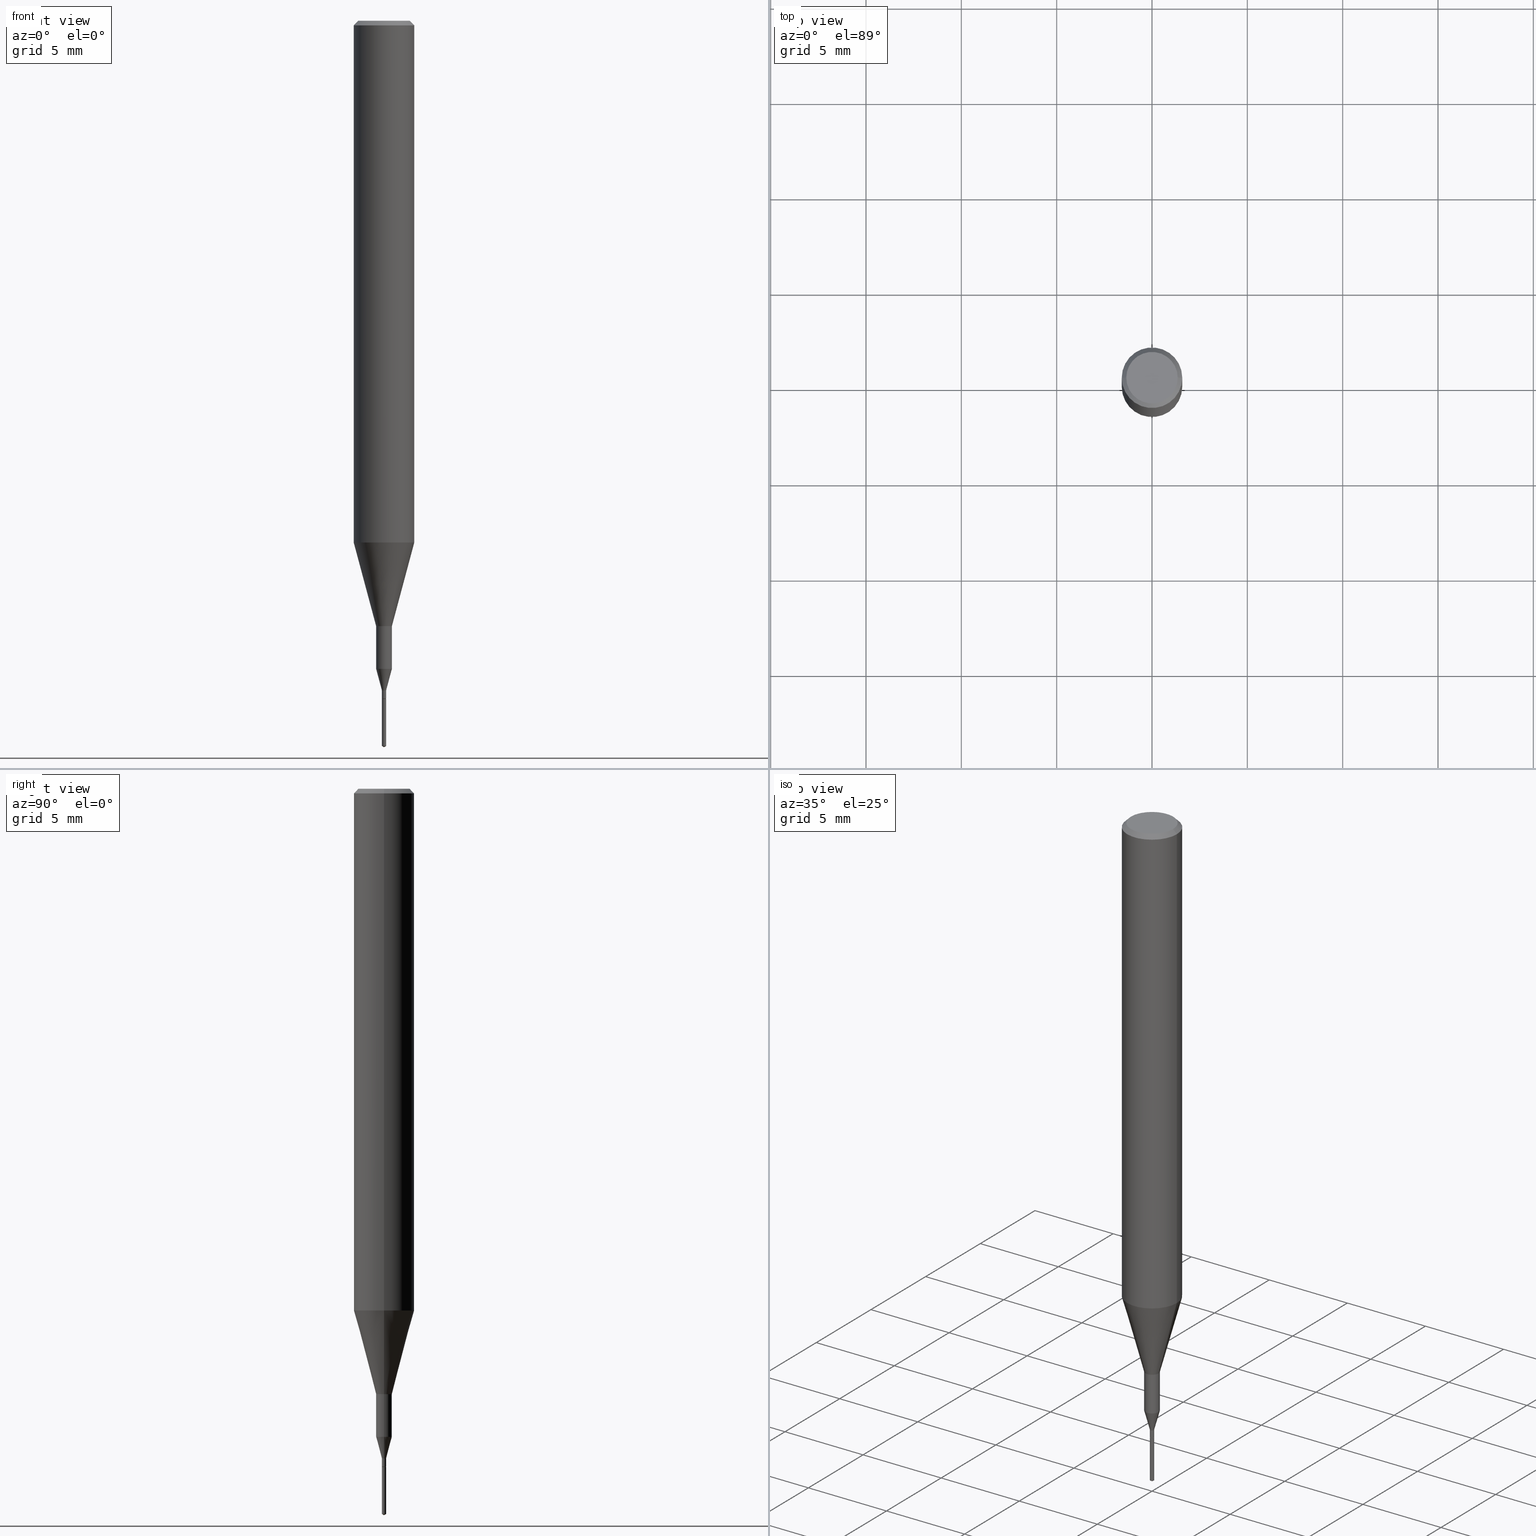
[diagram: canonical four-view strip — front | top / right | iso, engineering-drawing reading convention]
A machine part, canonical four-view strip (front | top / right | iso — engineering-drawing reading convention). The complete STEP part file that produces these views, byte-faithful:
ISO-10303-21;
HEADER;
FILE_DESCRIPTION (( 'STEP AP203' ),
    '1' );
FILE_NAME ('07082.STEP',
    '2024-04-19T13:29:41',
    ( '' ),
    ( '' ),
    'SwSTEP 2.0',
    'SolidWorks 2023',
    '' );
FILE_SCHEMA (( 'CONFIG_CONTROL_DESIGN' ));
ENDSEC;

DATA;
#1 = CARTESIAN_POINT ( 'NONE',  ( 1.415359278996747967E-46, -2.020757941330909984E-32, -5.787680772770392401E-18 ) ) ;
#2 = EDGE_CURVE ( 'NONE', #240, #576, #392, .T. ) ;
#3 = DIRECTION ( 'NONE',  ( 1.000000000000000000, -6.982962677686266711E-15, 4.875930095424100059E-29 ) ) ;
#4 = LINE ( 'NONE', #382, #20 ) ;
#5 = AXIS2_PLACEMENT_3D ( 'NONE', #461, #413, #147 ) ;
#6 = DIRECTION ( 'NONE',  ( 0.2588190451025214611, 1.565188264969621573E-15, 0.9659258262890682012 ) ) ;
#7 = CARTESIAN_POINT ( 'NONE',  ( -0.004349999999999993629, 3.090860900556431281E-17, -2.139736764260880962E-31 ) ) ;
#8 = EDGE_CURVE ( 'NONE', #188, #590, #397, .T. ) ;
#9 = EDGE_LOOP ( 'NONE', ( #361, #414, #203, #535 ) ) ;
#10 = DATE_AND_TIME ( #341, #484 ) ;
#11 = DIRECTION ( 'NONE',  ( -2.445468806185136597E-29, 3.491481338843145583E-15, 1.000000000000000000 ) ) ;
#12 = DIRECTION ( 'NONE',  ( -2.445468806185136597E-29, 3.491481338843145583E-15, 1.000000000000000000 ) ) ;
#14 = VERTEX_POINT ( 'NONE', #343 ) ;
#13 = CIRCLE ( 'NONE', #500, 0.004349999999999982353 ) ;
#15 = AXIS2_PLACEMENT_3D ( 'NONE', #253, #442, #211 ) ;
#16 = ORIENTED_EDGE ( 'NONE', *, *, #46, .T. ) ;
#17 = ORIENTED_EDGE ( 'NONE', *, *, #239, .T. ) ;
#18 = ADVANCED_FACE ( 'NONE', ( #486 ), #249, .T. ) ;
#19 = ORIENTED_EDGE ( 'NONE', *, *, #92, .T. ) ;
#20 = VECTOR ( 'NONE', #99, 39.37007874015748143 ) ;
#21 = CIRCLE ( 'NONE', #82, 0.01624999999999999709 ) ;
#22 = ORIENTED_EDGE ( 'NONE', *, *, #8, .F. ) ;
#23 = PRODUCT ( '07082', '07082', '', ( #573 ) ) ;
#24 = CARTESIAN_POINT ( 'NONE',  ( -3.037588764790101145E-17, -0.004350000000004887284, -1.400000000000000133 ) ) ;
#25 = ADVANCED_FACE ( 'NONE', ( #75 ), #130, .T. ) ;
#26 = ORIENTED_EDGE ( 'NONE', *, *, #528, .F. ) ;
#27 = EDGE_CURVE ( 'NONE', #576, #240, #533, .T. ) ;
#28 = DIRECTION ( 'NONE',  ( -2.452008562004351188E-29, 3.482116036290244915E-15, 1.000000000000000000 ) ) ;
#29 = APPROVAL_DATE_TIME ( #305, #167 ) ;
#30 = AXIS2_PLACEMENT_3D ( 'NONE', #337, #458, #49 ) ;
#31 = EDGE_CURVE ( 'NONE', #301, #42, #58, .T. ) ;
#32 = VECTOR ( 'NONE', #369, 39.37007874015748143 ) ;
#33 = FACE_OUTER_BOUND ( 'NONE', #297, .T. ) ;
#34 = LINE ( 'NONE', #358, #562 ) ;
#35 = ORIENTED_EDGE ( 'NONE', *, *, #390, .F. ) ;
#36 = DIRECTION ( 'NONE',  ( 1.000000000000000000, -6.982962677686264344E-15, 0.000000000000000000 ) ) ;
#37 = AXIS2_PLACEMENT_3D ( 'NONE', #319, #227, #431 ) ;
#38 = EDGE_LOOP ( 'NONE', ( #218, #331, #565, #499 ) ) ;
#39 = AXIS2_PLACEMENT_3D ( 'NONE', #335, #473, #158 ) ;
#40 = AXIS2_PLACEMENT_3D ( 'NONE', #376, #231, #421 ) ;
#41 = SECURITY_CLASSIFICATION ( '', '', #292 ) ;
#42 = VERTEX_POINT ( 'NONE', #553 ) ;
#43 = APPROVAL_ROLE ( '' ) ;
#44 = LINE ( 'NONE', #141, #204 ) ;
#45 = CARTESIAN_POINT ( 'NONE',  ( 3.272498466818778483E-29, -4.672260508656662791E-15, -1.338188595389930624 ) ) ;
#46 = EDGE_CURVE ( 'NONE', #291, #14, #300, .T. ) ;
#47 = DIRECTION ( 'NONE',  ( 1.000000000000000000, -6.982962677686266711E-15, 0.000000000000000000 ) ) ;
#48 = DIRECTION ( 'NONE',  ( -2.445468806185136597E-29, 3.491481338843145583E-15, 1.000000000000000000 ) ) ;
#49 = DIRECTION ( 'NONE',  ( 1.000000000000000000, -6.982962677686198869E-15, 0.000000000000000000 ) ) ;
#50 = CARTESIAN_POINT ( 'NONE',  ( 3.423656328659192244E-29, -4.888073874380404841E-15, -1.400000000000000355 ) ) ;
#51 = CARTESIAN_POINT ( 'NONE',  ( -0.06250000000000000000, -1.453125275228401137E-15, -0.009375000000000062103 ) ) ;
#52 = FACE_OUTER_BOUND ( 'NONE', #436, .T. ) ;
#53 = CLOSED_SHELL ( 'NONE', ( #108, #127, #515, #530, #25, #344, #201, #116, #574, #490, #18, #449, #254, #144, #67, #324 ) ) ;
#54 =( GEOMETRIC_REPRESENTATION_CONTEXT ( 3 ) GLOBAL_UNCERTAINTY_ASSIGNED_CONTEXT ( ( #540 ) ) GLOBAL_UNIT_ASSIGNED_CONTEXT ( ( #502, #389, #555 ) ) REPRESENTATION_CONTEXT ( 'NONE', 'WORKASPACE' ) );
#55 = ORIENTED_EDGE ( 'NONE', *, *, #120, .T. ) ;
#56 = CARTESIAN_POINT ( 'NONE',  ( -0.01625000000000000056, -4.556797314095646605E-15, -1.338188595389930624 ) ) ;
#57 = DIRECTION ( 'NONE',  ( -2.445468806185136597E-29, 3.491481338843145583E-15, 1.000000000000000000 ) ) ;
#58 = LINE ( 'NONE', #273, #491 ) ;
#59 = EDGE_LOOP ( 'NONE', ( #340, #264, #357, #423 ) ) ;
#60 = DIRECTION ( 'NONE',  ( 1.000000000000000000, -6.982962677686264344E-15, 0.000000000000000000 ) ) ;
#61 = EDGE_CURVE ( 'NONE', #191, #143, #582, .T. ) ;
#62 = PRODUCT_RELATED_PRODUCT_CATEGORY ( 'detail', '', ( #23 ) ) ;
#63 = AXIS2_PLACEMENT_3D ( 'NONE', #149, #416, #190 ) ;
#64 = CONICAL_SURFACE ( 'NONE', #185, 65.52281426577236800, 1.029744258676680957 ) ;
#65 = PERSON_AND_ORGANIZATION_ROLE ( 'design_supplier' ) ;
#66 = EDGE_LOOP ( 'NONE', ( #338, #541, #522, #133 ) ) ;
#67 = ADVANCED_FACE ( 'NONE', ( #52 ), #329, .T. ) ;
#68 = PERSON_AND_ORGANIZATION ( #375, #393 ) ;
#69 = ORIENTED_EDGE ( 'NONE', *, *, #390, .T. ) ;
#70 = ORIENTED_EDGE ( 'NONE', *, *, #433, .F. ) ;
#71 = CONICAL_SURFACE ( 'NONE', #123, 65.52281426577236800, 1.029744258676680957 ) ;
#72 = PRODUCT_DEFINITION_FORMATION_WITH_SPECIFIED_SOURCE ( 'ANY', '', #23, .NOT_KNOWN. ) ;
#73 = LOCAL_TIME ( 9, 29, 41.00000000000000000, #235 ) ;
#74 = CC_DESIGN_DATE_AND_TIME_ASSIGNMENT ( #466, #476, ( #41 ) ) ;
#75 = FACE_OUTER_BOUND ( 'NONE', #360, .T. ) ;
#76 = PERSON_AND_ORGANIZATION ( #375, #393 ) ;
#77 = PLANE ( 'NONE',  #15 ) ;
#78 = DIRECTION ( 'NONE',  ( 0.000000000000000000, 0.000000000000000000, 1.000000000000000000 ) ) ;
#79 = DIRECTION ( 'NONE',  ( -0.7071067811865454633, 2.468850131082235367E-15, -0.7071067811865495711 ) ) ;
#80 = EDGE_CURVE ( 'NONE', #447, #378, #4, .T. ) ;
#81 = AXIS2_PLACEMENT_3D ( 'NONE', #371, #241, #94 ) ;
#82 = AXIS2_PLACEMENT_3D ( 'NONE', #223, #372, #424 ) ;
#83 = MANIFOLD_SOLID_BREP ( 'Body-Move/Copy2[1]', #172 ) ;
#84 = DIRECTION ( 'NONE',  ( -6.982962677686265133E-15, -1.000000000000000000, 3.468864327941385955E-15 ) ) ;
#85 = ORIENTED_EDGE ( 'NONE', *, *, #80, .T. ) ;
#86 = DIRECTION ( 'NONE',  ( 1.000000000000000000, -6.982962677686267499E-15, 4.876176775795936353E-29 ) ) ;
#87 = EDGE_LOOP ( 'NONE', ( #26, #19, #448, #391 ) ) ;
#88 = LINE ( 'NONE', #24, #258 ) ;
#89 = ORIENTED_EDGE ( 'NONE', *, *, #31, .T. ) ;
#90 = AXIS2_PLACEMENT_3D ( 'NONE', #1, #182, #365 ) ;
#91 = ORIENTED_EDGE ( 'NONE', *, *, #274, .T. ) ;
#92 = EDGE_CURVE ( 'NONE', #518, #295, #13, .T. ) ;
#93 = CIRCLE ( 'NONE', #401, 0.004349999999999999700 ) ;
#94 = DIRECTION ( 'NONE',  ( -6.982962677686266711E-15, -1.000000000000000000, 0.000000000000000000 ) ) ;
#95 = LINE ( 'NONE', #589, #32 ) ;
#96 = ORIENTED_EDGE ( 'NONE', *, *, #176, .T. ) ;
#97 = CARTESIAN_POINT ( 'NONE',  ( 0.000000000000000000, 0.000000000000000000, 0.000000000000000000 ) ) ;
#98 = DIRECTION ( 'NONE',  ( 1.000000000000000000, -6.982962677686266711E-15, 4.876176775795936353E-29 ) ) ;
#99 = DIRECTION ( 'NONE',  ( -2.445468806185136877E-29, 3.491481338843145188E-15, 1.000000000000000000 ) ) ;
#100 = DIRECTION ( 'NONE',  ( -2.445468806185136597E-29, 3.491481338843145583E-15, 1.000000000000000000 ) ) ;
#101 = PRODUCT_DEFINITION ( 'UNKNOWN', '', #72, #160 ) ;
#102 = DIRECTION ( 'NONE',  ( 2.438088387897960049E-29, -3.491481338843145188E-15, -1.000000000000000000 ) ) ;
#103 = DIRECTION ( 'NONE',  ( -2.445468806185136597E-29, 3.491481338843145583E-15, 1.000000000000000000 ) ) ;
#104 = VECTOR ( 'NONE', #270, 39.37007874015748143 ) ;
#105 = VECTOR ( 'NONE', #351, 39.37007874015747433 ) ;
#106 = SHAPE_DEFINITION_REPRESENTATION ( #569, #550 ) ;
#107 = FACE_OUTER_BOUND ( 'NONE', #410, .T. ) ;
#108 = ADVANCED_FACE ( 'NONE', ( #377 ), #444, .T. ) ;
#109 = EDGE_LOOP ( 'NONE', ( #153, #225, #286, #200 ) ) ;
#110 = DIRECTION ( 'NONE',  ( -2.445468806185136597E-29, 3.491481338843145583E-15, 1.000000000000000000 ) ) ;
#111 = CARTESIAN_POINT ( 'NONE',  ( 0.000000000000000000, 0.000000000000000000, 0.000000000000000000 ) ) ;
#112 = DIRECTION ( 'NONE',  ( 1.000000000000000000, -6.982962677686288799E-15, 0.000000000000000000 ) ) ;
#113 = DIMENSIONAL_EXPONENTS ( 1.000000000000000000, 0.000000000000000000, 0.000000000000000000, 0.000000000000000000, 0.000000000000000000, 0.000000000000000000, 0.000000000000000000 ) ;
#114 = ORIENTED_EDGE ( 'NONE', *, *, #435, .F. ) ;
#115 = PERSON_AND_ORGANIZATION ( #375, #393 ) ;
#116 = ADVANCED_FACE ( 'NONE', ( #194 ), #566, .F. ) ;
#117 = ORIENTED_EDGE ( 'NONE', *, *, #213, .F. ) ;
#118 = AXIS2_PLACEMENT_3D ( 'NONE', #132, #313, #403 ) ;
#119 = EDGE_LOOP ( 'NONE', ( #35, #516 ) ) ;
#120 = EDGE_CURVE ( 'NONE', #143, #191, #366, .T. ) ;
#121 = ORIENTED_EDGE ( 'NONE', *, *, #92, .F. ) ;
#122 = DIRECTION ( 'NONE',  ( 1.000000000000000000, -6.982962677686258033E-15, 0.000000000000000000 ) ) ;
#123 = AXIS2_PLACEMENT_3D ( 'NONE', #139, #230, #154 ) ;
#124 = CIRCLE ( 'NONE', #40, 0.003850000000000000124 ) ;
#125 = CC_DESIGN_APPROVAL ( #299, ( #72 ) ) ;
#126 = FACE_OUTER_BOUND ( 'NONE', #159, .T. ) ;
#127 = ADVANCED_FACE ( 'NONE', ( #441 ), #388, .T. ) ;
#128 = DIRECTION ( 'NONE',  ( -2.445468806185136597E-29, 3.491481338843145583E-15, 1.000000000000000000 ) ) ;
#129 = DIRECTION ( 'NONE',  ( -2.452008562004351188E-29, 3.482116036290244915E-15, 1.000000000000000000 ) ) ;
#130 = CONICAL_SURFACE ( 'NONE', #202, 0.01625000000000000056, 0.2617993877991501295 ) ;
#131 = CARTESIAN_POINT ( 'NONE',  ( 3.090860900559858512E-17, 0.004349999999995111249, -1.400000000000000133 ) ) ;
#132 = CARTESIAN_POINT ( 'NONE',  ( 0.000000000000000000, 0.000000000000000000, 0.000000000000000000 ) ) ;
#133 = ORIENTED_EDGE ( 'NONE', *, *, #549, .F. ) ;
#134 = CARTESIAN_POINT ( 'NONE',  ( 3.423656328659192244E-29, -4.888073874380404841E-15, -1.400000000000000355 ) ) ;
#135 = DATE_AND_TIME ( #146, #510 ) ;
#136 = EDGE_CURVE ( 'NONE', #301, #188, #501, .T. ) ;
#137 = LINE ( 'NONE', #454, #222 ) ;
#138 = DIRECTION ( 'NONE',  ( 1.000000000000000000, -6.982962677686258033E-15, 0.000000000000000000 ) ) ;
#139 = CARTESIAN_POINT ( 'NONE',  ( -9.286691297279199858E-28, 1.318548970531025661E-13, 37.87007874015748143 ) ) ;
#140 = CARTESIAN_POINT ( 'NONE',  ( 3.090860900560098868E-17, 0.004349999999995112117, -1.400000000000000133 ) ) ;
#141 = CARTESIAN_POINT ( 'NONE',  ( 0.01624999999999999709, -1.134731435124018242E-16, 7.923787260668394963E-31 ) ) ;
#142 = CIRCLE ( 'NONE', #525, 0.06250000000000012490 ) ;
#143 = VERTEX_POINT ( 'NONE', #374 ) ;
#144 = ADVANCED_FACE ( 'NONE', ( #506 ), #559, .T. ) ;
#145 = DIRECTION ( 'NONE',  ( -6.982962677686266711E-15, -1.000000000000000000, 0.000000000000000000 ) ) ;
#146 = CALENDAR_DATE ( 2024, 19, 4 ) ;
#147 = DIRECTION ( 'NONE',  ( -6.982962677686265133E-15, -1.000000000000000000, 0.000000000000000000 ) ) ;
#148 = DIRECTION ( 'NONE',  ( 1.000000000000000000, -6.982962677686266711E-15, 4.876176775795935793E-29 ) ) ;
#149 = CARTESIAN_POINT ( 'NONE',  ( 2.634730117954813298E-29, -3.761696332605275695E-15, -1.077392650149939346 ) ) ;
#150 = DIRECTION ( 'NONE',  ( -0.7071067811864302222, 7.493145998869931331E-15, 0.7071067811866648123 ) ) ;
#151 = AXIS2_PLACEMENT_3D ( 'NONE', #228, #110, #60 ) ;
#152 = CIRCLE ( 'NONE', #453, 0.004349999999999982353 ) ;
#153 = ORIENTED_EDGE ( 'NONE', *, *, #27, .T. ) ;
#154 = DIRECTION ( 'NONE',  ( -6.982962677686265133E-15, -1.000000000000000000, 3.468864327941385955E-15 ) ) ;
#155 = CARTESIAN_POINT ( 'NONE',  ( -0.06250000000000012490, -3.317607122755211895E-15, -1.077392650149939346 ) ) ;
#156 = ORIENTED_EDGE ( 'NONE', *, *, #370, .T. ) ;
#157 = ADVANCED_FACE ( 'NONE', ( #456 ), #71, .T. ) ;
#158 = DIRECTION ( 'NONE',  ( 1.000000000000000000, -6.982962677686265922E-15, 4.876176775795935793E-29 ) ) ;
#159 = EDGE_LOOP ( 'NONE', ( #252, #432 ) ) ;
#160 = DESIGN_CONTEXT ( 'detailed design', #271, 'design' ) ;
#161 = ORIENTED_EDGE ( 'NONE', *, *, #433, .T. ) ;
#162 = AXIS2_PLACEMENT_3D ( 'NONE', #262, #128, #304 ) ;
#163 = VERTEX_POINT ( 'NONE', #385 ) ;
#164 = DIRECTION ( 'NONE',  ( -6.982962677686266711E-15, -1.000000000000000000, 0.000000000000000000 ) ) ;
#165 = EDGE_LOOP ( 'NONE', ( #91, #364 ) ) ;
#166 = AXIS2_PLACEMENT_3D ( 'NONE', #482, #78, #298 ) ;
#167 = APPROVAL ( #398, 'UNSPECIFIED' ) ;
#168 = DIRECTION ( 'NONE',  ( -2.445468806185136877E-29, 3.491481338843145188E-15, 1.000000000000000000 ) ) ;
#169 = EDGE_CURVE ( 'NONE', #294, #378, #242, .T. ) ;
#170 = FACE_OUTER_BOUND ( 'NONE', #179, .T. ) ;
#171 = PERSON_AND_ORGANIZATION ( #375, #393 ) ;
#172 = CLOSED_SHELL ( 'NONE', ( #316, #157, #521, #474, #588 ) ) ;
#173 = LOCAL_TIME ( 9, 29, 41.00000000000000000, #446 ) ;
#174 = ORIENTED_EDGE ( 'NONE', *, *, #80, .F. ) ;
#175 = DIRECTION ( 'NONE',  ( -2.445468806185136597E-29, 3.491481338843145583E-15, 1.000000000000000000 ) ) ;
#176 = EDGE_CURVE ( 'NONE', #163, #447, #545, .T. ) ;
#177 = CARTESIAN_POINT ( 'NONE',  ( 0.000000000000000000, 0.000000000000000000, 0.000000000000000000 ) ) ;
#178 = CARTESIAN_POINT ( 'NONE',  ( 3.272498466818778483E-29, -4.672260508656662791E-15, -1.338188595389930624 ) ) ;
#179 = EDGE_LOOP ( 'NONE', ( #323, #89, #587 ) ) ;
#180 = CARTESIAN_POINT ( 'NONE',  ( 1.415359278996747967E-46, -2.020757941330909984E-32, -5.787680772770392401E-18 ) ) ;
#181 = EDGE_LOOP ( 'NONE', ( #452, #455, #117 ) ) ;
#182 = DIRECTION ( 'NONE',  ( -2.445468806185136597E-29, 3.491481338843145583E-15, 1.000000000000000000 ) ) ;
#183 = FACE_OUTER_BOUND ( 'NONE', #165, .T. ) ;
#184 = AXIS2_PLACEMENT_3D ( 'NONE', #178, #205, #312 ) ;
#185 = AXIS2_PLACEMENT_3D ( 'NONE', #531, #129, #84 ) ;
#186 = CARTESIAN_POINT ( 'NONE',  ( 3.090860900560097019E-17, 0.004349999999994772111, -1.497386256307230434 ) ) ;
#187 = LINE ( 'NONE', #556, #293 ) ;
#188 = VERTEX_POINT ( 'NONE', #186 ) ;
#189 = COORDINATED_UNIVERSAL_TIME_OFFSET ( 5, 0, .BEHIND. ) ;
#190 = DIRECTION ( 'NONE',  ( 1.000000000000000000, -6.982962677686264344E-15, 0.000000000000000000 ) ) ;
#191 = VERTEX_POINT ( 'NONE', #551 ) ;
#192 = PERSON_AND_ORGANIZATION_ROLE ( 'classification_officer' ) ;
#193 = CARTESIAN_POINT ( 'NONE',  ( 0.06250000000000012490, -4.198131499960668153E-15, -1.077392650149939346 ) ) ;
#194 = FACE_OUTER_BOUND ( 'NONE', #119, .T. ) ;
#195 = AXIS2_PLACEMENT_3D ( 'NONE', #524, #538, #122 ) ;
#196 = ORIENTED_EDGE ( 'NONE', *, *, #469, .T. ) ;
#197 = EDGE_CURVE ( 'NONE', #447, #163, #142, .T. ) ;
#198 = ORIENTED_EDGE ( 'NONE', *, *, #460, .F. ) ;
#199 = COORDINATED_UNIVERSAL_TIME_OFFSET ( 5, 0, .BEHIND. ) ;
#200 = ORIENTED_EDGE ( 'NONE', *, *, #406, .F. ) ;
#201 = ADVANCED_FACE ( 'NONE', ( #462 ), #560, .T. ) ;
#203 = ORIENTED_EDGE ( 'NONE', *, *, #209, .T. ) ;
#202 = AXIS2_PLACEMENT_3D ( 'NONE', #45, #208, #138 ) ;
#204 = VECTOR ( 'NONE', #328, 39.37007874015748143 ) ;
#205 = DIRECTION ( 'NONE',  ( -2.445468806185136597E-29, 3.491481338843145583E-15, 1.000000000000000000 ) ) ;
#206 = EDGE_CURVE ( 'NONE', #568, #590, #570, .T. ) ;
#207 = DIRECTION ( 'NONE',  ( -2.452008562004351188E-29, 3.482116036290244915E-15, 1.000000000000000000 ) ) ;
#208 = DIRECTION ( 'NONE',  ( -2.445468806185136597E-29, 3.491481338843145583E-15, 1.000000000000000000 ) ) ;
#209 = EDGE_CURVE ( 'NONE', #503, #191, #418, .T. ) ;
#210 = CALENDAR_DATE ( 2024, 19, 4 ) ;
#211 = DIRECTION ( 'NONE',  ( 6.982962677686265922E-15, 1.000000000000000000, -3.482116036290244915E-15 ) ) ;
#212 = APPLICATION_CONTEXT ( 'configuration controlled 3d designs of mechanical parts and assemblies' ) ;
#213 = EDGE_CURVE ( 'NONE', #42, #188, #266, .T. ) ;
#214 = AXIS2_PLACEMENT_3D ( 'NONE', #177, #464, #98 ) ;
#215 = DIRECTION ( 'NONE',  ( -2.445468806185136597E-29, 3.491481338843145583E-15, 1.000000000000000000 ) ) ;
#216 = EDGE_CURVE ( 'NONE', #429, #234, #345, .T. ) ;
#217 = DATE_TIME_ROLE ( 'creation_date' ) ;
#218 = ORIENTED_EDGE ( 'NONE', *, *, #213, .T. ) ;
#219 = LINE ( 'NONE', #405, #438 ) ;
#220 = AXIS2_PLACEMENT_3D ( 'NONE', #320, #287, #145 ) ;
#221 = LENGTH_MEASURE_WITH_UNIT ( LENGTH_MEASURE( 0.02539999999999999897 ), #263 );
#222 = VECTOR ( 'NONE', #318, 39.37007874015747433 ) ;
#223 = CARTESIAN_POINT ( 'NONE',  ( 3.056836007731421306E-29, -4.364351673553932471E-15, -1.250000000000000000 ) ) ;
#224 = ORIENTED_EDGE ( 'NONE', *, *, #435, .T. ) ;
#225 = ORIENTED_EDGE ( 'NONE', *, *, #362, .T. ) ;
#226 = CARTESIAN_POINT ( 'NONE',  ( 0.05312499999999999861, -4.129888592719939842E-16, -5.787680772767651417E-18 ) ) ;
#227 = DIRECTION ( 'NONE',  ( -2.445468806185136597E-29, 3.491481338843145583E-15, 1.000000000000000000 ) ) ;
#228 = CARTESIAN_POINT ( 'NONE',  ( 2.634730117954813298E-29, -3.761696332605275695E-15, -1.077392650149939346 ) ) ;
#229 = DIRECTION ( 'NONE',  ( -6.982962677686266711E-15, -1.000000000000000000, 0.000000000000000000 ) ) ;
#230 = DIRECTION ( 'NONE',  ( -2.452008562004351188E-29, 3.482116036290244915E-15, 1.000000000000000000 ) ) ;
#231 = DIRECTION ( 'NONE',  ( -2.445468806185136597E-29, 3.491481338843145583E-15, 1.000000000000000000 ) ) ;
#232 = AXIS2_PLACEMENT_3D ( 'NONE', #97, #277, #148 ) ;
#233 = CONICAL_SURFACE ( 'NONE', #571, 0.003850000000000000124, 0.7853981633972824117 ) ;
#234 = VERTEX_POINT ( 'NONE', #322 ) ;
#235 = COORDINATED_UNIVERSAL_TIME_OFFSET ( 5, 0, .BEHIND. ) ;
#236 = CARTESIAN_POINT ( 'NONE',  ( -0.01624999999999999709, 1.154631945610162595E-16, -7.993269521664220284E-31 ) ) ;
#237 = DIRECTION ( 'NONE',  ( 1.000000000000000000, -6.982962677686267499E-15, 4.876176775795936353E-29 ) ) ;
#238 = CARTESIAN_POINT ( 'NONE',  ( 3.381105171431570264E-29, -4.827322099084534150E-15, -1.382600000000000273 ) ) ;
#239 = EDGE_CURVE ( 'NONE', #188, #42, #430, .T. ) ;
#240 = VERTEX_POINT ( 'NONE', #56 ) ;
#241 = DIRECTION ( 'NONE',  ( -2.452008562004351188E-29, 3.482116036290244915E-15, 1.000000000000000000 ) ) ;
#242 = CIRCLE ( 'NONE', #407, 0.06250000000000000000 ) ;
#243 = CC_DESIGN_APPROVAL ( #167, ( #101 ) ) ;
#244 = ORIENTED_EDGE ( 'NONE', *, *, #169, .F. ) ;
#245 = DATE_AND_TIME ( #333, #384 ) ;
#246 = ORIENTED_EDGE ( 'NONE', *, *, #396, .T. ) ;
#247 = DIRECTION ( 'NONE',  ( 1.000000000000000000, -6.982962677686266711E-15, 4.876176775795935793E-29 ) ) ;
#248 = ORIENTED_EDGE ( 'NONE', *, *, #469, .F. ) ;
#250 = ORIENTED_EDGE ( 'NONE', *, *, #197, .T. ) ;
#249 = CONICAL_SURFACE ( 'NONE', #195, 0.01625000000000000056, 0.2617993877991501295 ) ;
#251 = VECTOR ( 'NONE', #6, 39.37007874015747433 ) ;
#252 = ORIENTED_EDGE ( 'NONE', *, *, #206, .T. ) ;
#253 = CARTESIAN_POINT ( 'NONE',  ( 3.423656328659191123E-29, -4.888073874380404052E-15, -1.400000000000000133 ) ) ;
#254 = ADVANCED_FACE ( 'NONE', ( #107 ), #321, .T. ) ;
#255 = PERSON_AND_ORGANIZATION_ROLE ( 'design_owner' ) ;
#256 = DIRECTION ( 'NONE',  ( -6.982962677686265133E-15, -1.000000000000000000, 0.000000000000000000 ) ) ;
#257 = AXIS2_PLACEMENT_3D ( 'NONE', #564, #290, #427 ) ;
#258 = VECTOR ( 'NONE', #28, 39.37007874015748143 ) ;
#259 = APPROVAL_ROLE ( '' ) ;
#260 = CARTESIAN_POINT ( 'NONE',  ( 0.000000000000000000, 0.000000000000000000, 0.000000000000000000 ) ) ;
#261 = EDGE_LOOP ( 'NONE', ( #96, #85, #244, #248 ) ) ;
#262 = CARTESIAN_POINT ( 'NONE',  ( 3.423656328659192244E-29, -4.888073874380404841E-15, -1.400000000000000355 ) ) ;
#263 =( LENGTH_UNIT ( ) NAMED_UNIT ( * ) SI_UNIT ( $, .METRE. ) );
#264 = ORIENTED_EDGE ( 'NONE', *, *, #2, .T. ) ;
#265 = CARTESIAN_POINT ( 'NONE',  ( 0.01625000000000000056, -4.785733652169064467E-15, -1.338188595389930624 ) ) ;
#266 = CIRCLE ( 'NONE', #81, 0.004349999999999997966 ) ;
#267 = AXIS2_PLACEMENT_3D ( 'NONE', #260, #215, #86 ) ;
#268 = CARTESIAN_POINT ( 'NONE',  ( 0.01625000000000000056, -4.785733652169064467E-15, -1.338188595389930624 ) ) ;
#269 = ORIENTED_EDGE ( 'NONE', *, *, #27, .F. ) ;
#270 = DIRECTION ( 'NONE',  ( 6.090539988449877043E-15, 0.8571673007021276547, 0.5150380749100285094 ) ) ;
#271 = APPLICATION_CONTEXT ( 'configuration controlled 3d designs of mechanical parts and assemblies' ) ;
#272 = CARTESIAN_POINT ( 'NONE',  ( 2.292627005798580623E-31, -3.273263755165470801E-17, -0.009375000000000062103 ) ) ;
#273 = CARTESIAN_POINT ( 'NONE',  ( 3.659701526712726431E-29, -5.249396901583489399E-15, -1.500000000000000222 ) ) ;
#274 = EDGE_CURVE ( 'NONE', #234, #429, #578, .T. ) ;
#275 = CARTESIAN_POINT ( 'NONE',  ( 2.634730117954813298E-29, -3.761696332605275695E-15, -1.077392650149939346 ) ) ;
#276 = FACE_OUTER_BOUND ( 'NONE', #493, .T. ) ;
#277 = DIRECTION ( 'NONE',  ( -2.445468806185136597E-29, 3.491481338843145583E-15, 1.000000000000000000 ) ) ;
#278 = CYLINDRICAL_SURFACE ( 'NONE', #214, 0.004349999999999993629 ) ;
#279 = AXIS2_PLACEMENT_3D ( 'NONE', #280, #103, #112 ) ;
#280 = CARTESIAN_POINT ( 'NONE',  ( 3.056836007731421306E-29, -4.364351673553932471E-15, -1.250000000000000000 ) ) ;
#281 = VECTOR ( 'NONE', #498, 39.37007874015748143 ) ;
#282 = ORIENTED_EDGE ( 'NONE', *, *, #303, .F. ) ;
#283 = APPROVAL_STATUS ( 'not_yet_approved' ) ;
#284 = CARTESIAN_POINT ( 'NONE',  ( 0.06250000000000000000, -4.691678049070463404E-16, -0.009375000000000062103 ) ) ;
#285 = CARTESIAN_POINT ( 'NONE',  ( 2.292627005798580623E-31, -3.273263755165470801E-17, -0.009375000000000062103 ) ) ;
#286 = ORIENTED_EDGE ( 'NONE', *, *, #46, .F. ) ;
#287 = DIRECTION ( 'NONE',  ( -2.452008562004351188E-29, 3.482116036290244915E-15, 1.000000000000000000 ) ) ;
#288 = MANIFOLD_SOLID_BREP ( 'Body-Move/Copy2[2]', #53 ) ;
#289 = CYLINDRICAL_SURFACE ( 'NONE', #383, 0.01624999999999999709 ) ;
#290 = DIRECTION ( 'NONE',  ( 2.445468806185136597E-29, -3.491481338843145583E-15, -1.000000000000000000 ) ) ;
#291 = VERTEX_POINT ( 'NONE', #511 ) ;
#292 = SECURITY_CLASSIFICATION_LEVEL ( 'unclassified' ) ;
#293 = VECTOR ( 'NONE', #150, 39.37007874015748143 ) ;
#294 = VERTEX_POINT ( 'NONE', #284 ) ;
#295 = VERTEX_POINT ( 'NONE', #467 ) ;
#296 = CARTESIAN_POINT ( 'NONE',  ( 0.000000000000000000, 0.000000000000000000, 0.000000000000000000 ) ) ;
#297 = EDGE_LOOP ( 'NONE', ( #22, #17, #523, #394 ) ) ;
#298 = DIRECTION ( 'NONE',  ( 1.000000000000000000, 0.000000000000000000, 0.000000000000000000 ) ) ;
#299 = APPROVAL ( #585, 'UNSPECIFIED' ) ;
#301 = VERTEX_POINT ( 'NONE', #542 ) ;
#300 = CIRCLE ( 'NONE', #279, 0.01624999999999999709 ) ;
#302 = CONICAL_SURFACE ( 'NONE', #355, 0.06250000000000012490, 0.2617993877991501295 ) ;
#303 = EDGE_CURVE ( 'NONE', #191, #295, #95, .T. ) ;
#304 = DIRECTION ( 'NONE',  ( 1.000000000000000000, -6.982962677686319564E-15, 0.000000000000000000 ) ) ;
#305 = DATE_AND_TIME ( #210, #173 ) ;
#306 = CARTESIAN_POINT ( 'NONE',  ( 2.634730117954813298E-29, -3.761696332605275695E-15, -1.077392650149939346 ) ) ;
#307 = APPLICATION_PROTOCOL_DEFINITION ( 'international standard', 'config_control_design', 1994, #271 ) ;
#308 = CARTESIAN_POINT ( 'NONE',  ( 0.003850000000000000124, -4.914958280689496785E-15, -1.400000000000000355 ) ) ;
#309 = APPROVAL ( #283, 'UNSPECIFIED' ) ;
#310 = VECTOR ( 'NONE', #471, 39.37007874015748143 ) ;
#311 = COORDINATED_UNIVERSAL_TIME_OFFSET ( 5, 0, .BEHIND. ) ;
#312 = DIRECTION ( 'NONE',  ( 1.000000000000000000, -6.982962677686258033E-15, 0.000000000000000000 ) ) ;
#313 = DIRECTION ( 'NONE',  ( -2.445468806185136597E-29, 3.491481338843145583E-15, 1.000000000000000000 ) ) ;
#314 = PERSON_AND_ORGANIZATION ( #375, #393 ) ;
#315 = ORIENTED_EDGE ( 'NONE', *, *, #460, .T. ) ;
#316 = ADVANCED_FACE ( 'NONE', ( #505 ), #548, .T. ) ;
#317 = CARTESIAN_POINT ( 'NONE',  ( 3.423656328659191123E-29, -4.888073874380404052E-15, -1.400000000000000133 ) ) ;
#318 = DIRECTION ( 'NONE',  ( -0.2588190451025214611, 5.211531920934551042E-15, 0.9659258262890682012 ) ) ;
#319 = CARTESIAN_POINT ( 'NONE',  ( 3.272498466818778483E-29, -4.672260508656662791E-15, -1.338188595389930624 ) ) ;
#320 = CARTESIAN_POINT ( 'NONE',  ( 3.423656328659191123E-29, -4.888073874380404052E-15, -1.400000000000000133 ) ) ;
#321 = CONICAL_SURFACE ( 'NONE', #63, 0.06250000000000012490, 0.2617993877991501295 ) ;
#322 = CARTESIAN_POINT ( 'NONE',  ( -0.05312499999999999861, 3.873362110279099094E-16, -5.787680772773044021E-18 ) ) ;
#323 = ORIENTED_EDGE ( 'NONE', *, *, #136, .F. ) ;
#324 = ADVANCED_FACE ( 'NONE', ( #183 ), #507, .F. ) ;
#325 = DIRECTION ( 'NONE',  ( -1.000000000000000000, 6.982962677686265922E-15, -4.876176775795935793E-29 ) ) ;
#326 = DIRECTION ( 'NONE',  ( 1.000000000000000000, -6.982962677686264344E-15, 0.000000000000000000 ) ) ;
#327 = DIRECTION ( 'NONE',  ( -2.445468806185136597E-29, 3.491481338843145583E-15, 1.000000000000000000 ) ) ;
#328 = DIRECTION ( 'NONE',  ( -2.445468806185136877E-29, 3.491481338843145188E-15, 1.000000000000000000 ) ) ;
#329 = CONICAL_SURFACE ( 'NONE', #257, 0.06250000000000000000, 0.7853981633974453924 ) ;
#330 = APPROVAL_PERSON_ORGANIZATION ( #527, #167, #259 ) ;
#331 = ORIENTED_EDGE ( 'NONE', *, *, #8, .T. ) ;
#332 = CARTESIAN_POINT ( 'NONE',  ( 2.292627005798580623E-31, -3.273263755165470801E-17, -0.009375000000000062103 ) ) ;
#333 = CALENDAR_DATE ( 2024, 19, 4 ) ;
#334 = DIRECTION ( 'NONE',  ( 1.000000000000000000, -6.982962677686238312E-15, 0.000000000000000000 ) ) ;
#335 = CARTESIAN_POINT ( 'NONE',  ( -6.594504396541229131E-28, -1.042280009167172671E-13, -1.400000000000000355 ) ) ;
#336 = ORIENTED_EDGE ( 'NONE', *, *, #61, .T. ) ;
#337 = CARTESIAN_POINT ( 'NONE',  ( 3.422433594256099443E-29, -4.886328133710982549E-15, -1.399500000000000188 ) ) ;
#338 = ORIENTED_EDGE ( 'NONE', *, *, #216, .F. ) ;
#339 = AXIS2_PLACEMENT_3D ( 'NONE', #272, #48, #381 ) ;
#340 = ORIENTED_EDGE ( 'NONE', *, *, #362, .F. ) ;
#341 = CALENDAR_DATE ( 2024, 19, 4 ) ;
#342 = ORIENTED_EDGE ( 'NONE', *, *, #303, .T. ) ;
#343 = CARTESIAN_POINT ( 'NONE',  ( -0.01624999999999999709, -4.402842896544281840E-15, -1.250000000000000000 ) ) ;
#344 = ADVANCED_FACE ( 'NONE', ( #276 ), #278, .T. ) ;
#345 = CIRCLE ( 'NONE', #90, 0.05312499999999999861 ) ;
#346 = DIRECTION ( 'NONE',  ( -2.445468806185136597E-29, 3.491481338843145583E-15, 1.000000000000000000 ) ) ;
#348 = ORIENTED_EDGE ( 'NONE', *, *, #504, .F. ) ;
#347 = CIRCLE ( 'NONE', #162, 0.003850000000000000124 ) ;
#349 = CARTESIAN_POINT ( 'NONE',  ( 3.423656328659191123E-29, -4.888073874380404052E-15, -1.400000000000000133 ) ) ;
#350 = CC_DESIGN_PERSON_AND_ORGANIZATION_ASSIGNMENT ( #472, #65, ( #72 ) ) ;
#351 = DIRECTION ( 'NONE',  ( 0.2588190451025214611, 1.565188264969621573E-15, 0.9659258262890682012 ) ) ;
#352 = PERSON_AND_ORGANIZATION_ROLE ( 'creator' ) ;
#353 = CYLINDRICAL_SURFACE ( 'NONE', #118, 0.004349999999999993629 ) ;
#354 = AXIS2_PLACEMENT_3D ( 'NONE', #285, #557, #468 ) ;
#355 = AXIS2_PLACEMENT_3D ( 'NONE', #306, #346, #36 ) ;
#356 = APPROVAL_PERSON_ORGANIZATION ( #554, #309, #380 ) ;
#357 = ORIENTED_EDGE ( 'NONE', *, *, #406, .T. ) ;
#358 = CARTESIAN_POINT ( 'NONE',  ( 0.06250000000000006939, -4.364351673553921624E-16, 3.047610484872463374E-30 ) ) ;
#359 = LINE ( 'NONE', #7, #281 ) ;
#360 = EDGE_LOOP ( 'NONE', ( #224, #532, #269, #434 ) ) ;
#361 = ORIENTED_EDGE ( 'NONE', *, *, #396, .F. ) ;
#362 = EDGE_CURVE ( 'NONE', #240, #14, #363, .T. ) ;
#363 = LINE ( 'NONE', #236, #546 ) ;
#364 = ORIENTED_EDGE ( 'NONE', *, *, #216, .T. ) ;
#365 = DIRECTION ( 'NONE',  ( 1.000000000000000000, -6.982962677686266711E-15, 4.875930095424100059E-29 ) ) ;
#366 = CIRCLE ( 'NONE', #30, 0.004350000000000006639 ) ;
#367 = AXIS2_PLACEMENT_3D ( 'NONE', #180, #327, #3 ) ;
#368 = CC_DESIGN_APPROVAL ( #309, ( #41 ) ) ;
#369 = DIRECTION ( 'NONE',  ( -2.445468806185136877E-29, 3.491481338843145188E-15, 1.000000000000000000 ) ) ;
#370 = EDGE_CURVE ( 'NONE', #14, #291, #21, .T. ) ;
#371 = CARTESIAN_POINT ( 'NONE',  ( 3.662448262946070373E-29, -5.227184119182082111E-15, -1.497386256307230434 ) ) ;
#372 = DIRECTION ( 'NONE',  ( -2.445468806185136597E-29, 3.491481338843145583E-15, 1.000000000000000000 ) ) ;
#373 = EDGE_CURVE ( 'NONE', #143, #518, #359, .T. ) ;
#374 = CARTESIAN_POINT ( 'NONE',  ( -0.004350000000000006639, -4.855419524705417650E-15, -1.399500000000000188 ) ) ;
#375 = PERSON ( 'UNSPECIFIED', 'UNSPECIFIED', 'UNSPECIFIED', ('UNSPECIFIED'), ('UNSPECIFIED'), ('UNSPECIFIED') ) ;
#376 = CARTESIAN_POINT ( 'NONE',  ( 3.423656328659192244E-29, -4.888073874380404841E-15, -1.400000000000000355 ) ) ;
#377 = FACE_OUTER_BOUND ( 'NONE', #66, .T. ) ;
#378 = VERTEX_POINT ( 'NONE', #51 ) ;
#379 = CARTESIAN_POINT ( 'NONE',  ( 3.678173411635649529E-29, -5.223174054435366584E-15, -1.500000000000000222 ) ) ;
#380 = APPROVAL_ROLE ( '' ) ;
#381 = DIRECTION ( 'NONE',  ( 1.000000000000000000, -6.982962677686266711E-15, 0.000000000000000000 ) ) ;
#382 = CARTESIAN_POINT ( 'NONE',  ( -0.06250000000000006939, 4.440892098500631092E-16, -3.074334431409319267E-30 ) ) ;
#383 = AXIS2_PLACEMENT_3D ( 'NONE', #111, #57, #237 ) ;
#384 = LOCAL_TIME ( 9, 29, 41.00000000000000000, #189 ) ;
#385 = CARTESIAN_POINT ( 'NONE',  ( 0.06250000000000012490, -4.198131499960668153E-15, -1.077392650149939346 ) ) ;
#386 = DIRECTION ( 'NONE',  ( 1.000000000000000000, -6.982962677686238312E-15, 0.000000000000000000 ) ) ;
#387 = APPROVAL_DATE_TIME ( #245, #309 ) ;
#388 = CYLINDRICAL_SURFACE ( 'NONE', #477, 0.06250000000000006939 ) ;
#389 =( NAMED_UNIT ( * ) PLANE_ANGLE_UNIT ( ) SI_UNIT ( $, .RADIAN. ) );
#390 = EDGE_CURVE ( 'NONE', #503, #581, #124, .T. ) ;
#391 = ORIENTED_EDGE ( 'NONE', *, *, #2, .F. ) ;
#392 = CIRCLE ( 'NONE', #184, 0.01625000000000000056 ) ;
#393 = ORGANIZATION ( 'UNSPECIFIED', 'UNSPECIFIED', '' ) ;
#394 = ORIENTED_EDGE ( 'NONE', *, *, #577, .F. ) ;
#395 = EDGE_CURVE ( 'NONE', #295, #576, #537, .T. ) ;
#396 = EDGE_CURVE ( 'NONE', #581, #143, #187, .T. ) ;
#397 = LINE ( 'NONE', #131, #509 ) ;
#398 = APPROVAL_STATUS ( 'not_yet_approved' ) ;
#399 = DIRECTION ( 'NONE',  ( -0.2588190451025214611, 5.211531920934551042E-15, 0.9659258262890682012 ) ) ;
#400 = CARTESIAN_POINT ( 'NONE',  ( -3.037588764790101761E-17, -0.004350000000004888151, -1.400000000000000133 ) ) ;
#401 = AXIS2_PLACEMENT_3D ( 'NONE', #317, #207, #164 ) ;
#402 = FACE_OUTER_BOUND ( 'NONE', #475, .T. ) ;
#403 = DIRECTION ( 'NONE',  ( 1.000000000000000000, -6.982962677686266711E-15, 4.876176775795936353E-29 ) ) ;
#404 = DIRECTION ( 'NONE',  ( -2.452008562004351188E-29, 3.482116036290244915E-15, 1.000000000000000000 ) ) ;
#405 = CARTESIAN_POINT ( 'NONE',  ( -0.06250000000000000000, 4.037025298037369984E-16, -0.009375000000000062103 ) ) ;
#406 = EDGE_CURVE ( 'NONE', #576, #291, #44, .T. ) ;
#407 = AXIS2_PLACEMENT_3D ( 'NONE', #332, #513, #47 ) ;
#408 = APPROVAL_PERSON_ORGANIZATION ( #314, #299, #43 ) ;
#409 = CARTESIAN_POINT ( 'NONE',  ( 3.662448262946070373E-29, -5.227184119182082111E-15, -1.497386256307230434 ) ) ;
#410 = EDGE_LOOP ( 'NONE', ( #483, #156, #315, #567 ) ) ;
#411 = EDGE_CURVE ( 'NONE', #14, #447, #137, .T. ) ;
#412 = EDGE_LOOP ( 'NONE', ( #69, #246, #496, #512 ) ) ;
#413 = DIRECTION ( 'NONE',  ( -2.452008562004351188E-29, 3.482116036290244915E-15, 1.000000000000000000 ) ) ;
#414 = ORIENTED_EDGE ( 'NONE', *, *, #487, .T. ) ;
#415 = DIRECTION ( 'NONE',  ( 1.000000000000000000, -6.982962677686319564E-15, 0.000000000000000000 ) ) ;
#416 = DIRECTION ( 'NONE',  ( -2.445468806185136597E-29, 3.491481338843145583E-15, 1.000000000000000000 ) ) ;
#417 = DIRECTION ( 'NONE',  ( 1.000000000000000000, -6.982962677686198869E-15, 0.000000000000000000 ) ) ;
#418 = LINE ( 'NONE', #547, #310 ) ;
#419 = AXIS2_PLACEMENT_3D ( 'NONE', #409, #552, #229 ) ;
#420 = CIRCLE ( 'NONE', #339, 0.06250000000000000000 ) ;
#421 = DIRECTION ( 'NONE',  ( 1.000000000000000000, -6.982962677686319564E-15, 0.000000000000000000 ) ) ;
#422 = CC_DESIGN_PERSON_AND_ORGANIZATION_ASSIGNMENT ( #76, #255, ( #23 ) ) ;
#423 = ORIENTED_EDGE ( 'NONE', *, *, #370, .F. ) ;
#424 = DIRECTION ( 'NONE',  ( 1.000000000000000000, -6.982962677686288799E-15, 0.000000000000000000 ) ) ;
#425 = DIRECTION ( 'NONE',  ( -2.445468806185136597E-29, 3.491481338843145583E-15, 1.000000000000000000 ) ) ;
#426 = LINE ( 'NONE', #193, #105 ) ;
#427 = DIRECTION ( 'NONE',  ( -1.000000000000000000, 6.982962677686266711E-15, 0.000000000000000000 ) ) ;
#428 = CC_DESIGN_PERSON_AND_ORGANIZATION_ASSIGNMENT ( #115, #517, ( #72 ) ) ;
#429 = VERTEX_POINT ( 'NONE', #226 ) ;
#430 = CIRCLE ( 'NONE', #419, 0.004349999999999997966 ) ;
#431 = DIRECTION ( 'NONE',  ( 1.000000000000000000, -6.982962677686258033E-15, 0.000000000000000000 ) ) ;
#432 = ORIENTED_EDGE ( 'NONE', *, *, #577, .T. ) ;
#433 = EDGE_CURVE ( 'NONE', #378, #294, #420, .T. ) ;
#434 = ORIENTED_EDGE ( 'NONE', *, *, #395, .F. ) ;
#435 = EDGE_CURVE ( 'NONE', #295, #518, #152, .T. ) ;
#436 = EDGE_LOOP ( 'NONE', ( #348, #479, #470, #161 ) ) ;
#437 = AXIS2_PLACEMENT_3D ( 'NONE', #465, #425, #417 ) ;
#438 = VECTOR ( 'NONE', #79, 39.37007874015748143 ) ;
#439 = ORIENTED_EDGE ( 'NONE', *, *, #373, .T. ) ;
#440 = ORIENTED_EDGE ( 'NONE', *, *, #411, .T. ) ;
#441 = FACE_OUTER_BOUND ( 'NONE', #261, .T. ) ;
#442 = DIRECTION ( 'NONE',  ( 2.452008562004350908E-29, -3.482116036290244915E-15, -1.000000000000000000 ) ) ;
#443 = CC_DESIGN_PERSON_AND_ORGANIZATION_ASSIGNMENT ( #68, #192, ( #41 ) ) ;
#444 = CONICAL_SURFACE ( 'NONE', #354, 0.06250000000000000000, 0.7853981633974453924 ) ;
#445 = CYLINDRICAL_SURFACE ( 'NONE', #267, 0.01624999999999999709 ) ;
#446 = COORDINATED_UNIVERSAL_TIME_OFFSET ( 5, 0, .BEHIND. ) ;
#447 = VERTEX_POINT ( 'NONE', #155 ) ;
#448 = ORIENTED_EDGE ( 'NONE', *, *, #395, .T. ) ;
#449 = ADVANCED_FACE ( 'NONE', ( #514 ), #289, .T. ) ;
#450 = AXIS2_PLACEMENT_3D ( 'NONE', #50, #100, #415 ) ;
#451 = VECTOR ( 'NONE', #488, 39.37007874015748143 ) ;
#452 = ORIENTED_EDGE ( 'NONE', *, *, #31, .F. ) ;
#453 = AXIS2_PLACEMENT_3D ( 'NONE', #563, #11, #334 ) ;
#454 = CARTESIAN_POINT ( 'NONE',  ( -0.06250000000000012490, -3.317607122755211895E-15, -1.077392650149939346 ) ) ;
#455 = ORIENTED_EDGE ( 'NONE', *, *, #136, .T. ) ;
#456 = FACE_OUTER_BOUND ( 'NONE', #181, .T. ) ;
#457 = DIRECTION ( 'NONE',  ( -2.445468806185136877E-29, 3.491481338843145188E-15, 1.000000000000000000 ) ) ;
#458 = DIRECTION ( 'NONE',  ( -2.445468806185136597E-29, 3.491481338843145583E-15, 1.000000000000000000 ) ) ;
#459 = DIRECTION ( 'NONE',  ( -2.445468806185136597E-29, 3.491481338843145583E-15, 1.000000000000000000 ) ) ;
#460 = EDGE_CURVE ( 'NONE', #291, #163, #426, .T. ) ;
#461 = CARTESIAN_POINT ( 'NONE',  ( 3.423656328659191123E-29, -4.888073874380404052E-15, -1.400000000000000133 ) ) ;
#462 = FACE_OUTER_BOUND ( 'NONE', #412, .T. ) ;
#463 = APPROVAL_DATE_TIME ( #10, #299 ) ;
#464 = DIRECTION ( 'NONE',  ( -2.445468806185136597E-29, 3.491481338843145583E-15, 1.000000000000000000 ) ) ;
#465 = CARTESIAN_POINT ( 'NONE',  ( 3.422433594256099443E-29, -4.886328133710982549E-15, -1.399500000000000188 ) ) ;
#466 = DATE_AND_TIME ( #561, #73 ) ;
#467 = CARTESIAN_POINT ( 'NONE',  ( 0.004349999999999982353, -4.857697986732469101E-15, -1.382600000000000273 ) ) ;
#468 = DIRECTION ( 'NONE',  ( -1.000000000000000000, 6.982962677686266711E-15, 0.000000000000000000 ) ) ;
#469 = EDGE_CURVE ( 'NONE', #163, #294, #34, .T. ) ;
#470 = ORIENTED_EDGE ( 'NONE', *, *, #549, .T. ) ;
#471 = DIRECTION ( 'NONE',  ( 0.7071067811864302222, -2.468850131081028015E-15, 0.7071067811866648123 ) ) ;
#472 = PERSON_AND_ORGANIZATION ( #375, #393 ) ;
#473 = DIRECTION ( 'NONE',  ( -2.438088387897960049E-29, 3.491481338843145188E-15, 1.000000000000000000 ) ) ;
#474 = ADVANCED_FACE ( 'NONE', ( #33 ), #534, .T. ) ;
#475 = EDGE_LOOP ( 'NONE', ( #544, #55, #342, #121 ) ) ;
#476 = DATE_TIME_ROLE ( 'classification_date' ) ;
#477 = AXIS2_PLACEMENT_3D ( 'NONE', #296, #480, #247 ) ;
#478 = AXIS2_PLACEMENT_3D ( 'NONE', #586, #102, #325 ) ;
#479 = ORIENTED_EDGE ( 'NONE', *, *, #274, .F. ) ;
#480 = DIRECTION ( 'NONE',  ( -2.445468806185136597E-29, 3.491481338843145583E-15, 1.000000000000000000 ) ) ;
#481 = EDGE_LOOP ( 'NONE', ( #16, #440, #572, #198 ) ) ;
#482 = CARTESIAN_POINT ( 'NONE',  ( 0.000000000000000000, 0.000000000000000000, 0.000000000000000000 ) ) ;
#483 = ORIENTED_EDGE ( 'NONE', *, *, #411, .F. ) ;
#484 = LOCAL_TIME ( 9, 29, 41.00000000000000000, #199 ) ;
#485 = CC_DESIGN_SECURITY_CLASSIFICATION ( #41, ( #72 ) ) ;
#486 = FACE_OUTER_BOUND ( 'NONE', #87, .T. ) ;
#487 = EDGE_CURVE ( 'NONE', #581, #503, #347, .T. ) ;
#488 = DIRECTION ( 'NONE',  ( 0.7071067811865454633, -7.319954787623248157E-15, -0.7071067811865495711 ) ) ;
#489 = FACE_OUTER_BOUND ( 'NONE', #109, .T. ) ;
#490 = ADVANCED_FACE ( 'NONE', ( #402 ), #353, .T. ) ;
#491 = VECTOR ( 'NONE', #508, 39.37007874015748854 ) ;
#492 = LINE ( 'NONE', #497, #520 ) ;
#493 = EDGE_LOOP ( 'NONE', ( #336, #439, #114, #282 ) ) ;
#494 = CARTESIAN_POINT ( 'NONE',  ( 0.06250000000000000000, -4.615137624123753937E-16, -0.009375000000000062103 ) ) ;
#495 = CC_DESIGN_DATE_AND_TIME_ASSIGNMENT ( #135, #217, ( #101 ) ) ;
#496 = ORIENTED_EDGE ( 'NONE', *, *, #61, .F. ) ;
#497 = CARTESIAN_POINT ( 'NONE',  ( -0.01625000000000000056, -4.556797314095646605E-15, -1.338188595389930624 ) ) ;
#498 = DIRECTION ( 'NONE',  ( -2.445468806185136877E-29, 3.491481338843145188E-15, 1.000000000000000000 ) ) ;
#499 = ORIENTED_EDGE ( 'NONE', *, *, #539, .F. ) ;
#500 = AXIS2_PLACEMENT_3D ( 'NONE', #238, #12, #386 ) ;
#501 = LINE ( 'NONE', #379, #104 ) ;
#502 =( CONVERSION_BASED_UNIT ( 'INCH', #221 ) LENGTH_UNIT ( ) NAMED_UNIT ( #113 ) );
#503 = VERTEX_POINT ( 'NONE', #308 ) ;
#504 = EDGE_CURVE ( 'NONE', #429, #294, #575, .T. ) ;
#505 = FACE_OUTER_BOUND ( 'NONE', #38, .T. ) ;
#506 = FACE_OUTER_BOUND ( 'NONE', #558, .T. ) ;
#507 = PLANE ( 'NONE',  #478 ) ;
#508 = DIRECTION ( 'NONE',  ( -5.985567269336037521E-15, -0.8571673007021241020, 0.5150380749100343936 ) ) ;
#509 = VECTOR ( 'NONE', #404, 39.37007874015748143 ) ;
#510 = LOCAL_TIME ( 9, 29, 41.00000000000000000, #311 ) ;
#511 = CARTESIAN_POINT ( 'NONE',  ( 0.01624999999999999709, -4.477824817066334148E-15, -1.250000000000000000 ) ) ;
#512 = ORIENTED_EDGE ( 'NONE', *, *, #209, .F. ) ;
#513 = DIRECTION ( 'NONE',  ( -2.445468806185136597E-29, 3.491481338843145583E-15, 1.000000000000000000 ) ) ;
#514 = FACE_OUTER_BOUND ( 'NONE', #59, .T. ) ;
#515 = ADVANCED_FACE ( 'NONE', ( #580 ), #302, .T. ) ;
#516 = ORIENTED_EDGE ( 'NONE', *, *, #487, .F. ) ;
#517 = PERSON_AND_ORGANIZATION_ROLE ( 'creator' ) ;
#518 = VERTEX_POINT ( 'NONE', #579 ) ;
#519 = APPLICATION_PROTOCOL_DEFINITION ( 'international standard', 'config_control_design', 1994, #212 ) ;
#520 = VECTOR ( 'NONE', #399, 39.37007874015747433 ) ;
#521 = ADVANCED_FACE ( 'NONE', ( #170 ), #64, .T. ) ;
#522 = ORIENTED_EDGE ( 'NONE', *, *, #169, .T. ) ;
#523 = ORIENTED_EDGE ( 'NONE', *, *, #539, .T. ) ;
#524 = CARTESIAN_POINT ( 'NONE',  ( 3.272498466818778483E-29, -4.672260508656662791E-15, -1.338188595389930624 ) ) ;
#525 = AXIS2_PLACEMENT_3D ( 'NONE', #275, #459, #326 ) ;
#526 = CARTESIAN_POINT ( 'NONE',  ( -0.003850000000000000124, -4.858068751879529640E-15, -1.400000000000000355 ) ) ;
#527 = PERSON_AND_ORGANIZATION ( #375, #393 ) ;
#528 = EDGE_CURVE ( 'NONE', #518, #240, #492, .T. ) ;
#529 = DIRECTION ( 'NONE',  ( -2.452008562004351188E-29, 3.482116036290244915E-15, 1.000000000000000000 ) ) ;
#530 = ADVANCED_FACE ( 'NONE', ( #489 ), #445, .T. ) ;
#531 = CARTESIAN_POINT ( 'NONE',  ( -9.286691297279199858E-28, 1.318548970531025661E-13, 37.87007874015748143 ) ) ;
#532 = ORIENTED_EDGE ( 'NONE', *, *, #528, .T. ) ;
#533 = CIRCLE ( 'NONE', #37, 0.01625000000000000056 ) ;
#534 = CYLINDRICAL_SURFACE ( 'NONE', #584, 0.004349999999999999700 ) ;
#535 = ORIENTED_EDGE ( 'NONE', *, *, #120, .F. ) ;
#536 = DIRECTION ( 'NONE',  ( 1.000000000000000000, -6.982962677686319564E-15, 0.000000000000000000 ) ) ;
#537 = LINE ( 'NONE', #268, #251 ) ;
#538 = DIRECTION ( 'NONE',  ( -2.445468806185136597E-29, 3.491481338843145583E-15, 1.000000000000000000 ) ) ;
#539 = EDGE_CURVE ( 'NONE', #42, #568, #88, .T. ) ;
#540 = UNCERTAINTY_MEASURE_WITH_UNIT (LENGTH_MEASURE( 1.000000000000000082E-05 ), #502, 'distance_accuracy_value', 'NONE');
#541 = ORIENTED_EDGE ( 'NONE', *, *, #504, .T. ) ;
#542 = CARTESIAN_POINT ( 'NONE',  ( 3.678012843006527062E-29, -5.223174054435368162E-15, -1.500000000000000222 ) ) ;
#543 = CC_DESIGN_PERSON_AND_ORGANIZATION_ASSIGNMENT ( #171, #352, ( #101 ) ) ;
#544 = ORIENTED_EDGE ( 'NONE', *, *, #373, .F. ) ;
#545 = CIRCLE ( 'NONE', #151, 0.06250000000000012490 ) ;
#546 = VECTOR ( 'NONE', #457, 39.37007874015748143 ) ;
#547 = CARTESIAN_POINT ( 'NONE',  ( 0.003850000000000000124, -4.914958280689496785E-15, -1.400000000000000355 ) ) ;
#548 = CYLINDRICAL_SURFACE ( 'NONE', #5, 0.004349999999999999700 ) ;
#549 = EDGE_CURVE ( 'NONE', #234, #378, #219, .T. ) ;
#550 = ADVANCED_BREP_SHAPE_REPRESENTATION ( '07082', ( #83, #288, #166 ), #54 ) ;
#551 = CARTESIAN_POINT ( 'NONE',  ( 0.004350000000000006639, -4.916704021358918289E-15, -1.399500000000000188 ) ) ;
#552 = DIRECTION ( 'NONE',  ( -2.452008562004351188E-29, 3.482116036290244915E-15, 1.000000000000000000 ) ) ;
#553 = CARTESIAN_POINT ( 'NONE',  ( -3.037588764789862638E-17, -0.004350000000005226422, -1.497386256307230434 ) ) ;
#554 = PERSON_AND_ORGANIZATION ( #375, #393 ) ;
#555 =( NAMED_UNIT ( * ) SI_UNIT ( $, .STERADIAN. ) SOLID_ANGLE_UNIT ( ) );
#556 = CARTESIAN_POINT ( 'NONE',  ( -0.003850000000000000124, -4.860717979053640841E-15, -1.400000000000000355 ) ) ;
#557 = DIRECTION ( 'NONE',  ( 2.445468806185136597E-29, -3.491481338843145583E-15, -1.000000000000000000 ) ) ;
#558 = EDGE_LOOP ( 'NONE', ( #174, #250, #196, #70 ) ) ;
#559 = CYLINDRICAL_SURFACE ( 'NONE', #232, 0.06250000000000006939 ) ;
#560 = CONICAL_SURFACE ( 'NONE', #450, 0.003850000000000000124, 0.7853981633972824117 ) ;
#561 = CALENDAR_DATE ( 2024, 19, 4 ) ;
#562 = VECTOR ( 'NONE', #168, 39.37007874015748143 ) ;
#563 = CARTESIAN_POINT ( 'NONE',  ( 3.381105171431570264E-29, -4.827322099084534150E-15, -1.382600000000000273 ) ) ;
#564 = CARTESIAN_POINT ( 'NONE',  ( 2.292627005798580623E-31, -3.273263755165470801E-17, -0.009375000000000062103 ) ) ;
#565 = ORIENTED_EDGE ( 'NONE', *, *, #206, .F. ) ;
#566 = PLANE ( 'NONE',  #39 ) ;
#567 = ORIENTED_EDGE ( 'NONE', *, *, #197, .F. ) ;
#568 = VERTEX_POINT ( 'NONE', #400 ) ;
#569 = PRODUCT_DEFINITION_SHAPE ( 'NONE', 'NONE',  #101 ) ;
#570 = CIRCLE ( 'NONE', #220, 0.004349999999999999700 ) ;
#571 = AXIS2_PLACEMENT_3D ( 'NONE', #134, #175, #536 ) ;
#572 = ORIENTED_EDGE ( 'NONE', *, *, #176, .F. ) ;
#573 = MECHANICAL_CONTEXT ( 'NONE', #212, 'mechanical' ) ;
#574 = ADVANCED_FACE ( 'NONE', ( #583 ), #233, .T. ) ;
#575 = LINE ( 'NONE', #494, #451 ) ;
#576 = VERTEX_POINT ( 'NONE', #265 ) ;
#577 = EDGE_CURVE ( 'NONE', #590, #568, #93, .T. ) ;
#578 = CIRCLE ( 'NONE', #367, 0.05312499999999999861 ) ;
#579 = CARTESIAN_POINT ( 'NONE',  ( -0.004349999999999982353, -4.825916507392193846E-15, -1.382600000000000273 ) ) ;
#580 = FACE_OUTER_BOUND ( 'NONE', #481, .T. ) ;
#581 = VERTEX_POINT ( 'NONE', #526 ) ;
#582 = CIRCLE ( 'NONE', #437, 0.004350000000000006639 ) ;
#583 = FACE_OUTER_BOUND ( 'NONE', #9, .T. ) ;
#584 = AXIS2_PLACEMENT_3D ( 'NONE', #349, #529, #256 ) ;
#585 = APPROVAL_STATUS ( 'not_yet_approved' ) ;
#586 = CARTESIAN_POINT ( 'NONE',  ( 7.076796394983739835E-47, -1.010378970665454992E-32, -2.893840386385196200E-18 ) ) ;
#587 = ORIENTED_EDGE ( 'NONE', *, *, #239, .F. ) ;
#588 = ADVANCED_FACE ( 'NONE', ( #126 ), #77, .F. ) ;
#589 = CARTESIAN_POINT ( 'NONE',  ( 0.004349999999999993629, -3.037588764793521597E-17, 2.121136897471229155E-31 ) ) ;
#590 = VERTEX_POINT ( 'NONE', #140 ) ;
ENDSEC;
END-ISO-10303-21;
